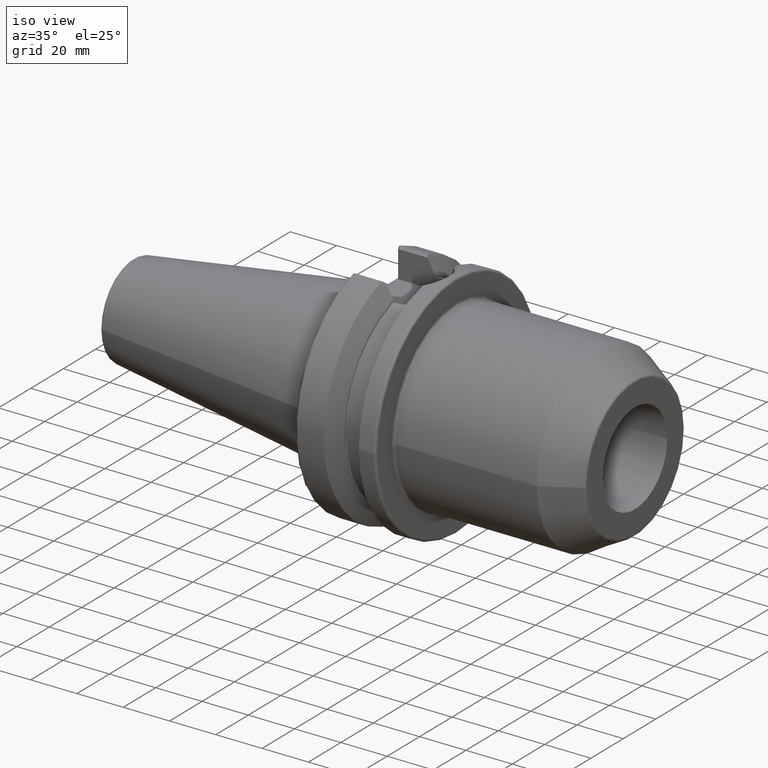
[diagram: clean part render]
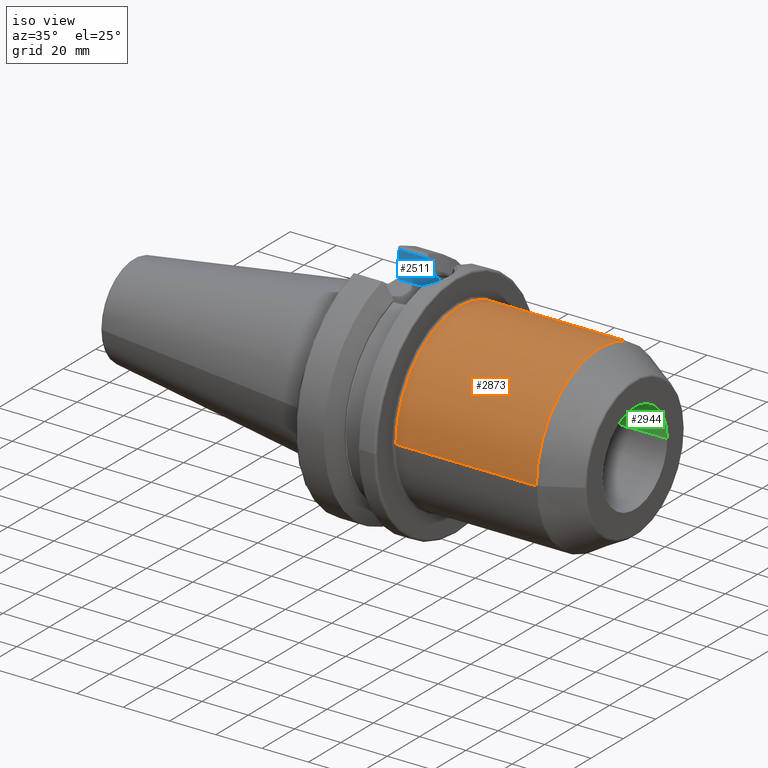
[diagram: same view with three faces highlighted in distinct colors, each labeled with its STEP entity id]
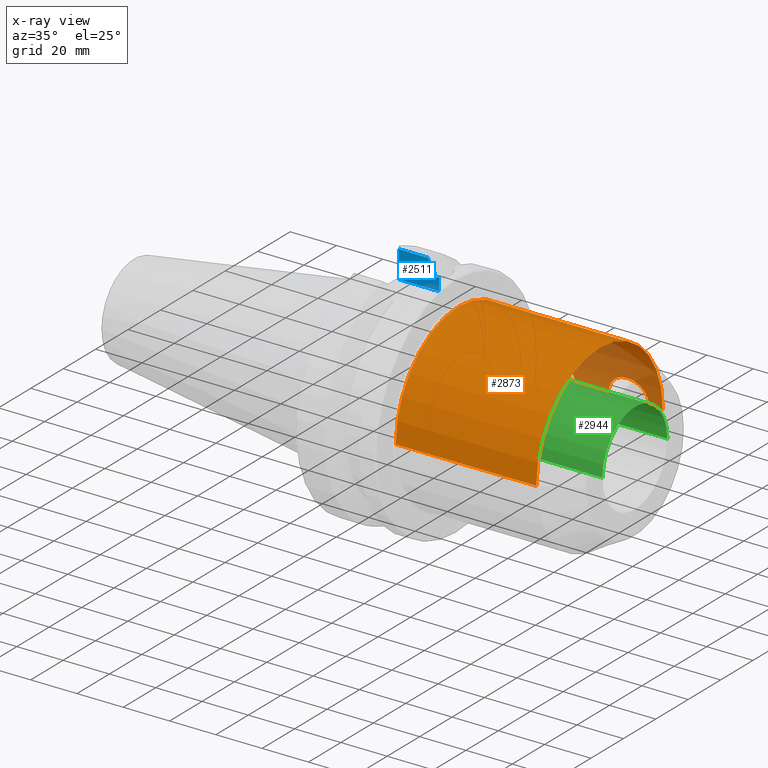
[diagram: x-ray of the same camera — body ghosted, the three highlighted faces saturated]
A machine part, iso view with three faces highlighted in distinct colors.
The next image is the same camera in x-ray (body ghosted, the three faces saturated) — at least one of them is partly hidden behind the body in this view.
Their STEP definitions:

[orange] entity #2873 — the highlighted cylindrical surface (partial cylindrical patch) has radius 39 mm, axis along (1, 0, 0).
#854=CARTESIAN_POINT('',(6.175E1,3.9E1,0.E0));
#855=CARTESIAN_POINT('',(6.175E1,3.9E1,4.337022744761E-1));
#856=CARTESIAN_POINT('',(6.168644025561E1,3.898566208406E1,1.292948543169E0));
#857=CARTESIAN_POINT('',(6.139761644277E1,3.892188249976E1,2.571902851036E0));
#858=CARTESIAN_POINT('',(6.092208825246E1,3.882132396950E1,3.791849537324E0));
#859=CARTESIAN_POINT('',(6.026410286601E1,3.869146770799E1,4.937132833549E0));
#860=CARTESIAN_POINT('',(5.944242692329E1,3.854450676095E1,5.970178759576E0));
#861=CARTESIAN_POINT('',(5.846715911274E1,3.839242313715E1,6.874242769095E0));
#862=CARTESIAN_POINT('',(5.737816123038E1,3.825145656225E1,7.614045311557E0));
#863=CARTESIAN_POINT('',(5.618625488958E1,3.813260396390E1,8.184269880095E0));
#864=CARTESIAN_POINT('',(5.494139421934E1,3.804821306096E1,8.565048155757E0));
#865=CARTESIAN_POINT('',(5.364712567135E1,3.800388008888E1,8.758215027886E0));
#866=CARTESIAN_POINT('',(5.235349348745E1,3.800386779190E1,8.758268818714E0));
#867=CARTESIAN_POINT('',(5.105911026579E1,3.804818867704E1,8.565153700634E0));
#868=CARTESIAN_POINT('',(4.981443636365E1,3.813254474296E1,8.184547768709E0));
#869=CARTESIAN_POINT('',(4.862220739238E1,3.825141475504E1,7.614245976538E0));
#870=CARTESIAN_POINT('',(4.753352920255E1,3.839232424737E1,6.874802879117E0));
#871=CARTESIAN_POINT('',(4.655776267408E1,3.854447424658E1,5.970372456170E0));
#872=CARTESIAN_POINT('',(4.573648352078E1,3.869135819059E1,4.937990902720E0));
#873=CARTESIAN_POINT('',(4.507801122614E1,3.882130175379E1,3.792099695057E0));
#874=CARTESIAN_POINT('',(4.460255578671E1,3.892184575126E1,2.572458914483E0));
#875=CARTESIAN_POINT('',(4.431353992361E1,3.898566605887E1,1.292983711203E0));
#876=CARTESIAN_POINT('',(4.425E1,3.9E1,4.337090460475E-1));
#877=CARTESIAN_POINT('',(4.425E1,3.9E1,0.E0));
#879=CARTESIAN_POINT('',(9.375E1,3.9E1,0.E0));
#880=CARTESIAN_POINT('',(9.375E1,3.9E1,4.337022744761E-1));
#881=CARTESIAN_POINT('',(9.368644025561E1,3.898566208406E1,1.292948543169E0));
#882=CARTESIAN_POINT('',(9.339761644277E1,3.892188249976E1,2.571902851036E0));
#883=CARTESIAN_POINT('',(9.292208825246E1,3.882132396950E1,3.791849537324E0));
#884=CARTESIAN_POINT('',(9.226410286601E1,3.869146770799E1,4.937132833549E0));
#885=CARTESIAN_POINT('',(9.144242692329E1,3.854450676095E1,5.970178759575E0));
#886=CARTESIAN_POINT('',(9.046715911274E1,3.839242313715E1,6.874242769095E0));
#887=CARTESIAN_POINT('',(8.937816123038E1,3.825145656225E1,7.614045311557E0));
#888=CARTESIAN_POINT('',(8.818625488958E1,3.813260396390E1,8.184269880095E0));
#889=CARTESIAN_POINT('',(8.694139421934E1,3.804821306096E1,8.565048155757E0));
#890=CARTESIAN_POINT('',(8.564712567135E1,3.800388008888E1,8.758215027885E0));
#891=CARTESIAN_POINT('',(8.435349348745E1,3.800386779190E1,8.758268818714E0));
#892=CARTESIAN_POINT('',(8.305911026579E1,3.804818867704E1,8.565153700634E0));
#893=CARTESIAN_POINT('',(8.181443636365E1,3.813254474296E1,8.184547768709E0));
#894=CARTESIAN_POINT('',(8.062220739238E1,3.825141475504E1,7.614245976538E0));
#895=CARTESIAN_POINT('',(7.953352920255E1,3.839232424737E1,6.874802879117E0));
#896=CARTESIAN_POINT('',(7.855776267408E1,3.854447424658E1,5.970372456170E0));
#897=CARTESIAN_POINT('',(7.773648352078E1,3.869135819059E1,4.937990902720E0));
#898=CARTESIAN_POINT('',(7.707801122614E1,3.882130175379E1,3.792099695057E0));
#899=CARTESIAN_POINT('',(7.660255578671E1,3.892184575126E1,2.572458914483E0));
#900=CARTESIAN_POINT('',(7.631353992361E1,3.898566605887E1,1.292983711203E0));
#901=CARTESIAN_POINT('',(7.625E1,3.9E1,4.337090460474E-1));
#902=CARTESIAN_POINT('',(7.625E1,3.9E1,0.E0));
#904=CARTESIAN_POINT('',(9.973205080757E1,0.E0,0.E0));
#905=DIRECTION('',(-1.E0,0.E0,0.E0));
#906=DIRECTION('',(0.E0,-1.E0,0.E0));
#907=AXIS2_PLACEMENT_3D('',#904,#905,#906);
#909=CARTESIAN_POINT('',(3.9E1,0.E0,0.E0));
#910=DIRECTION('',(1.E0,0.E0,0.E0));
#911=DIRECTION('',(0.E0,1.E0,0.E0));
#912=AXIS2_PLACEMENT_3D('',#909,#910,#911);
#1125=DIRECTION('',(-1.E0,0.E0,6.398261550207E-13));
#1126=VECTOR('',#1125,5.25E0);
#1127=CARTESIAN_POINT('',(4.425E1,3.9E1,0.E0));
#1128=LINE('',#1127,#1126);
#1134=DIRECTION('',(-1.E0,0.E0,-1.310557321836E-13));
#1135=VECTOR('',#1134,6.073205080757E1);
#1136=CARTESIAN_POINT('',(9.973205080757E1,-3.9E1,4.600759968958E-12));
#1137=LINE('',#1136,#1135);
#1143=DIRECTION('',(-1.E0,0.E0,7.696939228470E-13));
#1144=VECTOR('',#1143,5.982050807569E0);
#1145=CARTESIAN_POINT('',(9.973205080757E1,3.9E1,-4.601956622043E-12));
#1146=LINE('',#1145,#1144);
#1172=DIRECTION('',(-1.E0,0.E0,0.E0));
#1173=VECTOR('',#1172,1.45E1);
#1174=CARTESIAN_POINT('',(7.625E1,3.9E1,0.E0));
#1175=LINE('',#1174,#1173);
#1654=CARTESIAN_POINT('',(9.375E1,3.9E1,0.E0));
#1656=VERTEX_POINT('',#1654);
#1658=CARTESIAN_POINT('',(7.625E1,3.9E1,0.E0));
#1660=VERTEX_POINT('',#1658);
#1662=CARTESIAN_POINT('',(6.175E1,3.9E1,0.E0));
#1664=VERTEX_POINT('',#1662);
#1666=CARTESIAN_POINT('',(4.425E1,3.9E1,0.E0));
#1668=VERTEX_POINT('',#1666);
#1675=CARTESIAN_POINT('',(3.9E1,-3.9E1,0.E0));
#1676=CARTESIAN_POINT('',(3.9E1,3.9E1,0.E0));
#1677=VERTEX_POINT('',#1675);
#1678=VERTEX_POINT('',#1676);
#1679=CARTESIAN_POINT('',(9.973205080757E1,3.9E1,0.E0));
#1680=CARTESIAN_POINT('',(9.973205080757E1,-3.9E1,0.E0));
#1681=VERTEX_POINT('',#1679);
#1682=VERTEX_POINT('',#1680);
#2851=CARTESIAN_POINT('',(3.415E1,0.E0,0.E0));
#2852=DIRECTION('',(1.E0,0.E0,0.E0));
#2853=DIRECTION('',(0.E0,-1.E0,0.E0));
#2854=AXIS2_PLACEMENT_3D('',#2851,#2852,#2853);
#2855=CYLINDRICAL_SURFACE('',#2854,3.9E1);
#2857=ORIENTED_EDGE('',*,*,#2856,.F.);
#2859=ORIENTED_EDGE('',*,*,#2858,.F.);
#2861=ORIENTED_EDGE('',*,*,#2860,.F.);
#2863=ORIENTED_EDGE('',*,*,#2862,.F.);
#2865=ORIENTED_EDGE('',*,*,#2864,.F.);
#2867=ORIENTED_EDGE('',*,*,#2866,.T.);
#2868=ORIENTED_EDGE('',*,*,#2845,.F.);
#2870=ORIENTED_EDGE('',*,*,#2869,.F.);
#2871=EDGE_LOOP('',(#2857,#2859,#2861,#2863,#2865,#2867,#2868,#2870));
#2872=FACE_OUTER_BOUND('',#2871,.F.);
#2873=ADVANCED_FACE('',(#2872),#2855,.T.);
#878=B_SPLINE_CURVE_WITH_KNOTS('',3,(#854,#855,#856,#857,#858,#859,#860,#861,
#862,#863,#864,#865,#866,#867,#868,#869,#870,#871,#872,#873,#874,#875,#876,
#877),.UNSPECIFIED.,.F.,.F.,(4,1,1,1,1,1,1,1,1,1,1,1,1,1,1,1,1,1,1,1,1,4),(0.E0,
4.761904761905E-2,9.523809523810E-2,1.428571428571E-1,1.904761904762E-1,
2.380952380952E-1,2.857142857143E-1,3.333333333333E-1,3.809523809524E-1,
4.285714285714E-1,4.761904761905E-1,5.238095238095E-1,5.714285714286E-1,
6.190476190476E-1,6.666666666667E-1,7.142857142857E-1,7.619047619048E-1,
8.095238095238E-1,8.571428571429E-1,9.047619047619E-1,9.523809523810E-1,1.E0),
.UNSPECIFIED.);
#903=B_SPLINE_CURVE_WITH_KNOTS('',3,(#879,#880,#881,#882,#883,#884,#885,#886,
#887,#888,#889,#890,#891,#892,#893,#894,#895,#896,#897,#898,#899,#900,#901,
#902),.UNSPECIFIED.,.F.,.F.,(4,1,1,1,1,1,1,1,1,1,1,1,1,1,1,1,1,1,1,1,1,4),(0.E0,
4.761904761905E-2,9.523809523810E-2,1.428571428571E-1,1.904761904762E-1,
2.380952380952E-1,2.857142857143E-1,3.333333333333E-1,3.809523809524E-1,
4.285714285714E-1,4.761904761905E-1,5.238095238095E-1,5.714285714286E-1,
6.190476190476E-1,6.666666666667E-1,7.142857142857E-1,7.619047619048E-1,
8.095238095238E-1,8.571428571429E-1,9.047619047619E-1,9.523809523810E-1,1.E0),
.UNSPECIFIED.);
#908=CIRCLE('',#907,3.9E1);
#913=CIRCLE('',#912,3.9E1);
#2845=EDGE_CURVE('',#1678,#1677,#913,.T.);
#2856=EDGE_CURVE('',#1664,#1668,#878,.T.);
#2858=EDGE_CURVE('',#1660,#1664,#1175,.T.);
#2860=EDGE_CURVE('',#1656,#1660,#903,.T.);
#2862=EDGE_CURVE('',#1681,#1656,#1146,.T.);
#2864=EDGE_CURVE('',#1682,#1681,#908,.T.);
#2866=EDGE_CURVE('',#1682,#1677,#1137,.T.);
#2869=EDGE_CURVE('',#1668,#1678,#1128,.T.);

[blue] entity #2511 — the highlighted planar face has unit normal (0, 1, 0).
#639=DIRECTION('',(0.E0,0.E0,1.E0));
#640=VECTOR('',#639,4.678451531613E-1);
#641=CARTESIAN_POINT('',(1.96625E1,1.29025E1,4.062531376802E1));
#642=LINE('',#641,#640);
#643=CARTESIAN_POINT('',(1.99125E1,1.29025E1,4.036293000700E1));
#644=CARTESIAN_POINT('',(1.988482223968E1,1.29025E1,4.036293000700E1));
#645=CARTESIAN_POINT('',(1.983275140013E1,1.29025E1,4.037231907874E1));
#646=CARTESIAN_POINT('',(1.976358989115E1,1.29025E1,4.040921074747E1));
#647=CARTESIAN_POINT('',(1.970597803203E1,1.29025E1,4.046933362101E1));
#648=CARTESIAN_POINT('',(1.967010312706E1,1.29025E1,4.054571527488E1));
#649=CARTESIAN_POINT('',(1.96625E1,1.29025E1,4.059802443585E1));
#650=CARTESIAN_POINT('',(1.96625E1,1.29025E1,4.062531376802E1));
#652=DIRECTION('',(1.E0,0.E0,0.E0));
#653=VECTOR('',#652,1.435E0);
#654=CARTESIAN_POINT('',(1.99125E1,1.29025E1,4.036293000700E1));
#655=LINE('',#654,#653);
#656=DIRECTION('',(0.E0,0.E0,1.E0));
#657=VECTOR('',#656,5.162930007E0);
#658=CARTESIAN_POINT('',(2.13475E1,1.29025E1,3.52E1));
#659=LINE('',#658,#657);
#660=DIRECTION('',(0.E0,0.E0,1.E0));
#661=VECTOR('',#660,1.177335042340E1);
#662=CARTESIAN_POINT('',(4.E0,1.29025E1,3.52E1));
#663=LINE('',#662,#661);
#664=DIRECTION('',(1.E0,0.E0,0.E0));
#665=VECTOR('',#664,1.240508297825E1);
#666=CARTESIAN_POINT('',(4.E0,1.29025E1,4.697335042340E1));
#667=LINE('',#666,#665);
#668=CARTESIAN_POINT('',(1.96625E1,1.29025E1,4.109315892118E1));
#669=CARTESIAN_POINT('',(1.932181966297E1,1.29025E1,4.171163717070E1));
#670=CARTESIAN_POINT('',(1.862628256782E1,1.29025E1,4.297182203666E1));
#671=CARTESIAN_POINT('',(1.754114212137E1,1.29025E1,4.493063136453E1));
#672=CARTESIAN_POINT('',(1.678855217457E1,1.29025E1,4.628456220339E1));
#673=CARTESIAN_POINT('',(1.640508297825E1,1.29025E1,4.697335042340E1));
#687=DIRECTION('',(-1.E0,0.E0,0.E0));
#688=VECTOR('',#687,1.73475E1);
#689=CARTESIAN_POINT('',(2.13475E1,1.29025E1,3.52E1));
#690=LINE('',#689,#688);
#1436=CARTESIAN_POINT('',(1.96625E1,1.29025E1,4.062531376802E1));
#1438=VERTEX_POINT('',#1436);
#1444=CARTESIAN_POINT('',(1.99125E1,1.29025E1,4.036293000700E1));
#1446=VERTEX_POINT('',#1444);
#1473=CARTESIAN_POINT('',(1.96625E1,1.29025E1,4.109315892118E1));
#1475=VERTEX_POINT('',#1473);
#1563=CARTESIAN_POINT('',(2.13475E1,1.29025E1,3.52E1));
#1565=VERTEX_POINT('',#1563);
#1578=CARTESIAN_POINT('',(2.13475E1,1.29025E1,4.036293000700E1));
#1579=VERTEX_POINT('',#1578);
#1580=VERTEX_POINT('',#673);
#1618=CARTESIAN_POINT('',(4.E0,1.29025E1,3.52E1));
#1619=CARTESIAN_POINT('',(4.E0,1.29025E1,4.697335042340E1));
#1620=VERTEX_POINT('',#1618);
#1621=VERTEX_POINT('',#1619);
#2494=CARTESIAN_POINT('',(2.13475E1,1.29025E1,3.52E1));
#2495=DIRECTION('',(0.E0,1.E0,0.E0));
#2496=DIRECTION('',(-1.E0,0.E0,0.E0));
#2497=AXIS2_PLACEMENT_3D('',#2494,#2495,#2496);
#2498=PLANE('',#2497);
#2499=ORIENTED_EDGE('',*,*,#1936,.F.);
#2500=ORIENTED_EDGE('',*,*,#2090,.F.);
#2501=ORIENTED_EDGE('',*,*,#2122,.T.);
#2502=ORIENTED_EDGE('',*,*,#2239,.F.);
#2504=ORIENTED_EDGE('',*,*,#2503,.T.);
#2506=ORIENTED_EDGE('',*,*,#2505,.T.);
#2507=ORIENTED_EDGE('',*,*,#2487,.T.);
#2508=ORIENTED_EDGE('',*,*,#1968,.F.);
#2509=EDGE_LOOP('',(#2499,#2500,#2501,#2502,#2504,#2506,#2507,#2508));
#2510=FACE_OUTER_BOUND('',#2509,.F.);
#2511=ADVANCED_FACE('',(#2510),#2498,.F.);
#651=B_SPLINE_CURVE_WITH_KNOTS('',3,(#643,#644,#645,#646,#647,#648,#649,#650),
.UNSPECIFIED.,.F.,.F.,(4,1,1,1,1,4),(0.E0,2.E-1,4.E-1,6.E-1,8.E-1,1.E0),
.UNSPECIFIED.);
#674=B_SPLINE_CURVE_WITH_KNOTS('',3,(#668,#669,#670,#671,#672,#673),
.UNSPECIFIED.,.F.,.F.,(4,1,1,4),(0.E0,3.333333333333E-1,6.666666666667E-1,1.E0),
.UNSPECIFIED.);
#1936=EDGE_CURVE('',#1438,#1475,#642,.T.);
#1968=EDGE_CURVE('',#1475,#1580,#674,.T.);
#2090=EDGE_CURVE('',#1446,#1438,#651,.T.);
#2122=EDGE_CURVE('',#1446,#1579,#655,.T.);
#2239=EDGE_CURVE('',#1565,#1579,#659,.T.);
#2487=EDGE_CURVE('',#1621,#1580,#667,.T.);
#2503=EDGE_CURVE('',#1565,#1620,#690,.T.);
#2505=EDGE_CURVE('',#1620,#1621,#663,.T.);

[green] entity #2944 — the highlighted cylindrical surface (partial cylindrical patch) has radius 20 mm, axis along (1, 0, 0).
#948=DIRECTION('',(-1.E0,0.E0,0.E0));
#949=VECTOR('',#948,1.45E1);
#950=CARTESIAN_POINT('',(7.625E1,2.E1,0.E0));
#951=LINE('',#950,#949);
#978=DIRECTION('',(-1.E0,0.E0,0.E0));
#979=VECTOR('',#978,2.125E1);
#980=CARTESIAN_POINT('',(1.15E2,2.E1,0.E0));
#981=LINE('',#980,#979);
#982=DIRECTION('',(-1.E0,0.E0,0.E0));
#983=VECTOR('',#982,7.51E1);
#984=CARTESIAN_POINT('',(1.15E2,-2.E1,0.E0));
#985=LINE('',#984,#983);
#986=DIRECTION('',(-1.E0,0.E0,0.E0));
#987=VECTOR('',#986,4.35E0);
#988=CARTESIAN_POINT('',(4.425E1,2.E1,0.E0));
#989=LINE('',#988,#987);
#990=CARTESIAN_POINT('',(4.425E1,2.E1,0.E0));
#991=CARTESIAN_POINT('',(4.425E1,2.E1,4.026775252588E-1));
#992=CARTESIAN_POINT('',(4.430481774534E1,1.997591516891E1,1.206580366377E0));
#993=CARTESIAN_POINT('',(4.456060355407E1,1.986532035224E1,2.419084007897E0));
#994=CARTESIAN_POINT('',(4.498639577989E1,1.968712809570E1,3.587580175029E0));
#995=CARTESIAN_POINT('',(4.558823499813E1,1.944841540111E1,4.708620458146E0));
#996=CARTESIAN_POINT('',(4.635245180209E1,1.916811808877E1,5.738767377459E0));
#997=CARTESIAN_POINT('',(4.727796807805E1,1.886496075969E1,6.662024024363E0));
#998=CARTESIAN_POINT('',(4.831194357308E1,1.857545690130E1,7.425021014428E0));
#999=CARTESIAN_POINT('',(4.943850381184E1,1.832201597051E1,8.025350820958E0));
#1000=CARTESIAN_POINT('',(5.060440127229E1,1.813058605234E1,8.445405575385E0));
#1001=CARTESIAN_POINT('',(5.179970675200E1,1.801107434034E1,8.695446378149E0));
#1002=CARTESIAN_POINT('',(5.300068186306E1,1.797100744316E1,8.777292283891E0));
#1003=CARTESIAN_POINT('',(5.420065060469E1,1.801110520566E1,8.695384395656E0));
#1004=CARTESIAN_POINT('',(5.539662491377E1,1.813071679921E1,8.445124863634E0));
#1005=CARTESIAN_POINT('',(5.656195945131E1,1.832211125615E1,8.025136441484E0));
#1006=CARTESIAN_POINT('',(5.768893920854E1,1.857567459047E1,7.424486366198E0));
#1007=CARTESIAN_POINT('',(5.872261198833E1,1.886514512994E1,6.661487375147E0));
#1008=CARTESIAN_POINT('',(5.964789385021E1,1.916823581430E1,5.738397757433E0));
#1009=CARTESIAN_POINT('',(6.041239675261E1,1.944865644708E1,4.707632916148E0));
#1010=CARTESIAN_POINT('',(6.101384116558E1,1.968722738023E1,3.587006724502E0));
#1011=CARTESIAN_POINT('',(6.143953026183E1,1.986537739611E1,2.418543412011E0));
#1012=CARTESIAN_POINT('',(6.169512345903E1,1.997588994438E1,1.206827914129E0));
#1013=CARTESIAN_POINT('',(6.175E1,2.E1,4.028045927071E-1));
#1014=CARTESIAN_POINT('',(6.175E1,2.E1,0.E0));
#1016=CARTESIAN_POINT('',(7.625E1,2.E1,0.E0));
#1017=CARTESIAN_POINT('',(7.625E1,2.E1,4.026775252588E-1));
#1018=CARTESIAN_POINT('',(7.630481774534E1,1.997591516891E1,1.206580366377E0));
#1019=CARTESIAN_POINT('',(7.656060355407E1,1.986532035224E1,2.419084007897E0));
#1020=CARTESIAN_POINT('',(7.698639577989E1,1.968712809570E1,3.587580175029E0));
#1021=CARTESIAN_POINT('',(7.758823499813E1,1.944841540111E1,4.708620458146E0));
#1022=CARTESIAN_POINT('',(7.835245180209E1,1.916811808877E1,5.738767377459E0));
#1023=CARTESIAN_POINT('',(7.927796807805E1,1.886496075969E1,6.662024024363E0));
#1024=CARTESIAN_POINT('',(8.031194357308E1,1.857545690130E1,7.425021014427E0));
#1025=CARTESIAN_POINT('',(8.143850381184E1,1.832201597051E1,8.025350820958E0));
#1026=CARTESIAN_POINT('',(8.260440127229E1,1.813058605234E1,8.445405575385E0));
#1027=CARTESIAN_POINT('',(8.379970675200E1,1.801107434034E1,8.695446378149E0));
#1028=CARTESIAN_POINT('',(8.500068186306E1,1.797100744316E1,8.777292283891E0));
#1029=CARTESIAN_POINT('',(8.620065060469E1,1.801110520566E1,8.695384395656E0));
#1030=CARTESIAN_POINT('',(8.739662491377E1,1.813071679921E1,8.445124863634E0));
#1031=CARTESIAN_POINT('',(8.856195945131E1,1.832211125615E1,8.025136441484E0));
#1032=CARTESIAN_POINT('',(8.968893920854E1,1.857567459047E1,7.424486366198E0));
#1033=CARTESIAN_POINT('',(9.072261198833E1,1.886514512994E1,6.661487375147E0));
#1034=CARTESIAN_POINT('',(9.164789385021E1,1.916823581430E1,5.738397757433E0));
#1035=CARTESIAN_POINT('',(9.241239675261E1,1.944865644708E1,4.707632916148E0));
#1036=CARTESIAN_POINT('',(9.301384116558E1,1.968722738023E1,3.587006724502E0));
#1037=CARTESIAN_POINT('',(9.343953026183E1,1.986537739611E1,2.418543412011E0));
#1038=CARTESIAN_POINT('',(9.369512345903E1,1.997588994438E1,1.206827914129E0));
#1039=CARTESIAN_POINT('',(9.375E1,2.E1,4.028045927071E-1));
#1040=CARTESIAN_POINT('',(9.375E1,2.E1,0.E0));
#1047=CARTESIAN_POINT('',(3.99E1,0.E0,0.E0));
#1048=DIRECTION('',(1.E0,0.E0,0.E0));
#1049=DIRECTION('',(0.E0,1.E0,0.E0));
#1050=AXIS2_PLACEMENT_3D('',#1047,#1048,#1049);
#1052=CARTESIAN_POINT('',(1.15E2,0.E0,0.E0));
#1053=DIRECTION('',(1.E0,0.E0,0.E0));
#1054=DIRECTION('',(0.E0,1.E0,0.E0));
#1055=AXIS2_PLACEMENT_3D('',#1052,#1053,#1054);
#1647=CARTESIAN_POINT('',(3.99E1,2.E1,0.E0));
#1648=CARTESIAN_POINT('',(3.99E1,-2.E1,0.E0));
#1649=VERTEX_POINT('',#1647);
#1650=VERTEX_POINT('',#1648);
#1651=CARTESIAN_POINT('',(1.15E2,-2.E1,0.E0));
#1652=VERTEX_POINT('',#1651);
#1653=CARTESIAN_POINT('',(9.375E1,2.E1,0.E0));
#1655=VERTEX_POINT('',#1653);
#1657=CARTESIAN_POINT('',(7.625E1,2.E1,0.E0));
#1659=VERTEX_POINT('',#1657);
#1661=CARTESIAN_POINT('',(6.175E1,2.E1,0.E0));
#1663=VERTEX_POINT('',#1661);
#1665=CARTESIAN_POINT('',(4.425E1,2.E1,0.E0));
#1667=VERTEX_POINT('',#1665);
#1669=CARTESIAN_POINT('',(1.15E2,2.E1,0.E0));
#1670=VERTEX_POINT('',#1669);
#2926=CARTESIAN_POINT('',(3.6145E1,0.E0,0.E0));
#2927=DIRECTION('',(1.E0,0.E0,0.E0));
#2928=DIRECTION('',(0.E0,-1.E0,0.E0));
#2929=AXIS2_PLACEMENT_3D('',#2926,#2927,#2928);
#2930=CYLINDRICAL_SURFACE('',#2929,2.E1);
#2931=ORIENTED_EDGE('',*,*,#2884,.F.);
#2932=ORIENTED_EDGE('',*,*,#2921,.T.);
#2934=ORIENTED_EDGE('',*,*,#2933,.T.);
#2935=ORIENTED_EDGE('',*,*,#2917,.F.);
#2937=ORIENTED_EDGE('',*,*,#2936,.F.);
#2938=ORIENTED_EDGE('',*,*,#2913,.T.);
#2940=ORIENTED_EDGE('',*,*,#2939,.F.);
#2941=ORIENTED_EDGE('',*,*,#2909,.T.);
#2942=EDGE_LOOP('',(#2931,#2932,#2934,#2935,#2937,#2938,#2940,#2941));
#2943=FACE_OUTER_BOUND('',#2942,.F.);
#2944=ADVANCED_FACE('',(#2943),#2930,.F.);
#1015=B_SPLINE_CURVE_WITH_KNOTS('',3,(#990,#991,#992,#993,#994,#995,#996,#997,
#998,#999,#1000,#1001,#1002,#1003,#1004,#1005,#1006,#1007,#1008,#1009,#1010,
#1011,#1012,#1013,#1014),.UNSPECIFIED.,.F.,.F.,(4,1,1,1,1,1,1,1,1,1,1,1,1,1,1,1,
1,1,1,1,1,1,4),(0.E0,4.545454545455E-2,9.090909090909E-2,1.363636363636E-1,
1.818181818182E-1,2.272727272727E-1,2.727272727273E-1,3.181818181818E-1,
3.636363636364E-1,4.090909090909E-1,4.545454545455E-1,5.E-1,5.454545454545E-1,
5.909090909091E-1,6.363636363636E-1,6.818181818182E-1,7.272727272727E-1,
7.727272727273E-1,8.181818181818E-1,8.636363636364E-1,9.090909090909E-1,
9.545454545455E-1,1.E0),.UNSPECIFIED.);
#1041=B_SPLINE_CURVE_WITH_KNOTS('',3,(#1016,#1017,#1018,#1019,#1020,#1021,#1022,
#1023,#1024,#1025,#1026,#1027,#1028,#1029,#1030,#1031,#1032,#1033,#1034,#1035,
#1036,#1037,#1038,#1039,#1040),.UNSPECIFIED.,.F.,.F.,(4,1,1,1,1,1,1,1,1,1,1,1,1,
1,1,1,1,1,1,1,1,1,4),(0.E0,4.545454545455E-2,9.090909090909E-2,
1.363636363636E-1,1.818181818182E-1,2.272727272727E-1,2.727272727273E-1,
3.181818181818E-1,3.636363636364E-1,4.090909090909E-1,4.545454545455E-1,5.E-1,
5.454545454545E-1,5.909090909091E-1,6.363636363636E-1,6.818181818182E-1,
7.272727272727E-1,7.727272727273E-1,8.181818181818E-1,8.636363636364E-1,
9.090909090909E-1,9.545454545455E-1,1.E0),.UNSPECIFIED.);
#1051=CIRCLE('',#1050,2.E1);
#1056=CIRCLE('',#1055,2.E1);
#2884=EDGE_CURVE('',#1667,#1663,#1015,.T.);
#2909=EDGE_CURVE('',#1659,#1663,#951,.T.);
#2913=EDGE_CURVE('',#1670,#1655,#981,.T.);
#2917=EDGE_CURVE('',#1652,#1650,#985,.T.);
#2921=EDGE_CURVE('',#1667,#1649,#989,.T.);
#2933=EDGE_CURVE('',#1649,#1650,#1051,.T.);
#2936=EDGE_CURVE('',#1670,#1652,#1056,.T.);
#2939=EDGE_CURVE('',#1659,#1655,#1041,.T.);